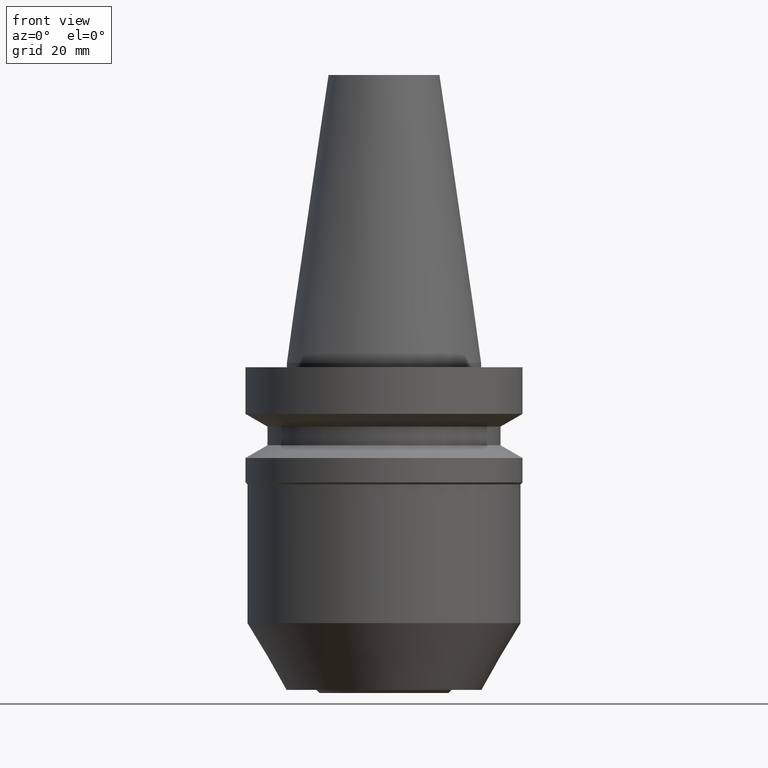
[diagram: clean part render]
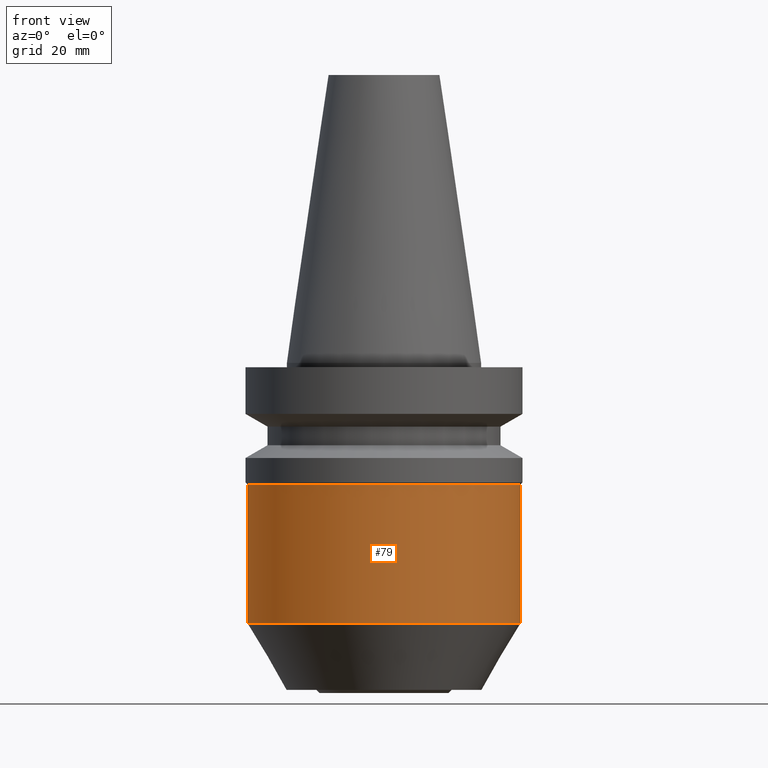
[diagram: same view with one face highlighted and labeled with its STEP entity id]
A machine part, front view. The second image highlights one B-rep face of the part: STEP entity #79.
In plain terms, the highlighted cylindrical surface (bore or boss wall) has radius 31.05 mm, axis along (0, 0, -1).
Its self-contained STEP definition (entity closure, byte-faithful):
#79=ADVANCED_FACE('',(#102,#103),#104,.T.);
#102=FACE_BOUND('',#145,.T.);
#103=FACE_BOUND('',#146,.T.);
#104=CYLINDRICAL_SURFACE('',#147,31.0499999999786);
#145=EDGE_LOOP('',(#196));
#146=EDGE_LOOP('',(#197));
#147=AXIS2_PLACEMENT_3D('',#198,#199,#200);
#196=ORIENTED_EDGE('',*,*,#254,.F.);
#197=ORIENTED_EDGE('',*,*,#253,.T.);
#198=CARTESIAN_POINT('',(2.65578605388668E-015,5.31157210777335E-015,-43.3722777169015));
#199=DIRECTION('',(6.12323399573677E-017,1.22464679914728E-016,-1.0));
#200=DIRECTION('',(-1.23259516440822E-032,1.0,1.22464679914728E-016));
#253=EDGE_CURVE('',#270,#270,#271,.T.);
#254=EDGE_CURVE('',#272,#272,#273,.T.);
#270=VERTEX_POINT('',#298);
#271=CIRCLE('',#299,31.0499999999786);
#272=VERTEX_POINT('',#300);
#273=CIRCLE('',#301,31.0499999999786);
#298=CARTESIAN_POINT('',(3.62155952494988E-015,31.0499999999786,-59.144555433801));
#299=AXIS2_PLACEMENT_3D('',#329,#330,#331);
#300=CARTESIAN_POINT('',(1.69001258282347E-015,31.0499999999786,-27.600000000002));
#301=AXIS2_PLACEMENT_3D('',#332,#333,#334);
#329=CARTESIAN_POINT('',(3.62155952494988E-015,7.24311904989976E-015,-59.144555433801));
#330=DIRECTION('',(-6.12323399573677E-017,-1.22464679914728E-016,1.0));
#331=DIRECTION('',(-1.23259516440822E-032,1.0,1.22464679914728E-016));
#332=CARTESIAN_POINT('',(1.69001258282347E-015,3.38002516564694E-015,-27.600000000002));
#333=DIRECTION('',(-6.12323399573677E-017,-1.22464679914728E-016,1.0));
#334=DIRECTION('',(-1.23259516440822E-032,1.0,1.22464679914728E-016));